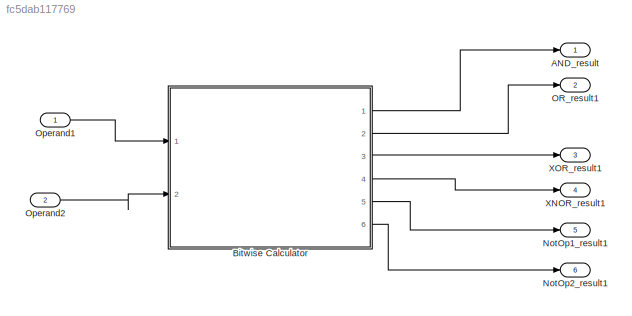
MODEL slx_fc5dab117769
KIND model
CONFIG AbsTol = auto
CONFIG EnableMultiTasking = off
CONFIG FixedStep = auto
CONFIG MaxStep = auto
CONFIG MinStep = auto
CONFIG RelTol = 1e-3
CONFIG SampleTimeConstraint = Unconstrained
CONFIG SolverName = VariableStepAuto
CONFIG StartTime = 0.0
CONFIG StopTime = 10.0
BLOCK [Outport] AND_result
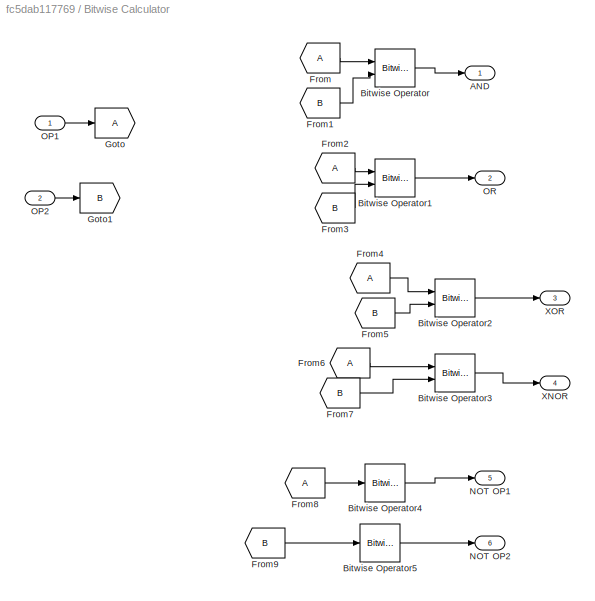
BLOCK [SubSystem] Bitwise Calculator
  Ports = [2, 6]
  RequestExecContextInheritance = off
BLOCK [Outport] Bitwise Calculator/AND
BLOCK [Reference] Bitwise Calculator/Bitwise Operator  REF=simulink/Logic and Bit
Operations/Bitwise
Operator
  Ports = [2, 1]
  SourceBlock = simulink/Logic and Bit\nOperations/Bitwise\nOperator
  SourceProductBaseCode = SL
  SourceType = Bitwise Operator
BLOCK [Reference] Bitwise Calculator/Bitwise Operator1  REF=simulink/Logic and Bit
Operations/Bitwise
Operator
  Ports = [2, 1]
  SourceBlock = simulink/Logic and Bit\nOperations/Bitwise\nOperator
  SourceProductBaseCode = SL
  SourceType = Bitwise Operator
BLOCK [Reference] Bitwise Calculator/Bitwise Operator2  REF=simulink/Logic and Bit
Operations/Bitwise
Operator
  Ports = [2, 1]
  SourceBlock = simulink/Logic and Bit\nOperations/Bitwise\nOperator
  SourceProductBaseCode = SL
  SourceType = Bitwise Operator
BLOCK [Reference] Bitwise Calculator/Bitwise Operator3  REF=simulink/Logic and Bit
Operations/Bitwise
Operator
  Ports = [2, 1]
  SourceBlock = simulink/Logic and Bit\nOperations/Bitwise\nOperator
  SourceProductBaseCode = SL
  SourceType = Bitwise Operator
BLOCK [Reference] Bitwise Calculator/Bitwise Operator4  REF=simulink/Logic and Bit
Operations/Bitwise
Operator
  Ports = [1, 1]
  SourceBlock = simulink/Logic and Bit\nOperations/Bitwise\nOperator
  SourceProductBaseCode = SL
  SourceType = Bitwise Operator
BLOCK [Reference] Bitwise Calculator/Bitwise Operator5  REF=simulink/Logic and Bit
Operations/Bitwise
Operator
  Ports = [1, 1]
  SourceBlock = simulink/Logic and Bit\nOperations/Bitwise\nOperator
  SourceProductBaseCode = SL
  SourceType = Bitwise Operator
BLOCK [From] Bitwise Calculator/From
BLOCK [From] Bitwise Calculator/From1
  GotoTag = B
BLOCK [From] Bitwise Calculator/From2
BLOCK [From] Bitwise Calculator/From3
  GotoTag = B
BLOCK [From] Bitwise Calculator/From4
BLOCK [From] Bitwise Calculator/From5
  GotoTag = B
BLOCK [From] Bitwise Calculator/From6
BLOCK [From] Bitwise Calculator/From7
  GotoTag = B
BLOCK [From] Bitwise Calculator/From8
BLOCK [From] Bitwise Calculator/From9
  GotoTag = B
BLOCK [Goto] Bitwise Calculator/Goto
BLOCK [Goto] Bitwise Calculator/Goto1
  GotoTag = B
BLOCK [Outport] Bitwise Calculator/NOT OP1
  Port = 5
BLOCK [Outport] Bitwise Calculator/NOT OP2
  Port = 6
BLOCK [Inport] Bitwise Calculator/OP1
  OutDataTypeStr = uint16
BLOCK [Inport] Bitwise Calculator/OP2
  OutDataTypeStr = uint16
  Port = 2
BLOCK [Outport] Bitwise Calculator/OR
  Port = 2
BLOCK [Outport] Bitwise Calculator/XNOR
  Port = 4
BLOCK [Outport] Bitwise Calculator/XOR
  Port = 3
BLOCK [Outport] NotOp1_result1
  Port = 5
BLOCK [Outport] NotOp2_result1
  Port = 6
BLOCK [Outport] OR_result1
  Port = 2
BLOCK [Inport] Operand1
BLOCK [Inport] Operand2
  Port = 2
BLOCK [Outport] XNOR_result1
  Port = 4
BLOCK [Outport] XOR_result1
  Port = 3
LINE Bitwise Calculator/Bitwise Operator1:1 -> Bitwise Calculator/OR:1
LINE Bitwise Calculator/Bitwise Operator2:1 -> Bitwise Calculator/XOR:1
LINE Bitwise Calculator/Bitwise Operator3:1 -> Bitwise Calculator/XNOR:1
LINE Bitwise Calculator/Bitwise Operator4:1 -> Bitwise Calculator/NOT OP1:1
LINE Bitwise Calculator/Bitwise Operator5:1 -> Bitwise Calculator/NOT OP2:1
LINE Bitwise Calculator/Bitwise Operator:1 -> Bitwise Calculator/AND:1
LINE Bitwise Calculator/From1:1 -> Bitwise Calculator/Bitwise Operator:2
LINE Bitwise Calculator/From2:1 -> Bitwise Calculator/Bitwise Operator1:1
LINE Bitwise Calculator/From3:1 -> Bitwise Calculator/Bitwise Operator1:2
LINE Bitwise Calculator/From4:1 -> Bitwise Calculator/Bitwise Operator2:1
LINE Bitwise Calculator/From5:1 -> Bitwise Calculator/Bitwise Operator2:2
LINE Bitwise Calculator/From6:1 -> Bitwise Calculator/Bitwise Operator3:1
LINE Bitwise Calculator/From7:1 -> Bitwise Calculator/Bitwise Operator3:2
LINE Bitwise Calculator/From8:1 -> Bitwise Calculator/Bitwise Operator4:1
LINE Bitwise Calculator/From9:1 -> Bitwise Calculator/Bitwise Operator5:1
LINE Bitwise Calculator/From:1 -> Bitwise Calculator/Bitwise Operator:1
LINE Bitwise Calculator/OP1:1 -> Bitwise Calculator/Goto:1
LINE Bitwise Calculator/OP2:1 -> Bitwise Calculator/Goto1:1
LINE Bitwise Calculator:1 -> AND_result:1
LINE Bitwise Calculator:2 -> OR_result1:1
LINE Bitwise Calculator:3 -> XOR_result1:1
LINE Bitwise Calculator:4 -> XNOR_result1:1
LINE Bitwise Calculator:5 -> NotOp1_result1:1
LINE Bitwise Calculator:6 -> NotOp2_result1:1
LINE Operand1:1 -> Bitwise Calculator:1
LINE Operand2:1 -> Bitwise Calculator:2
